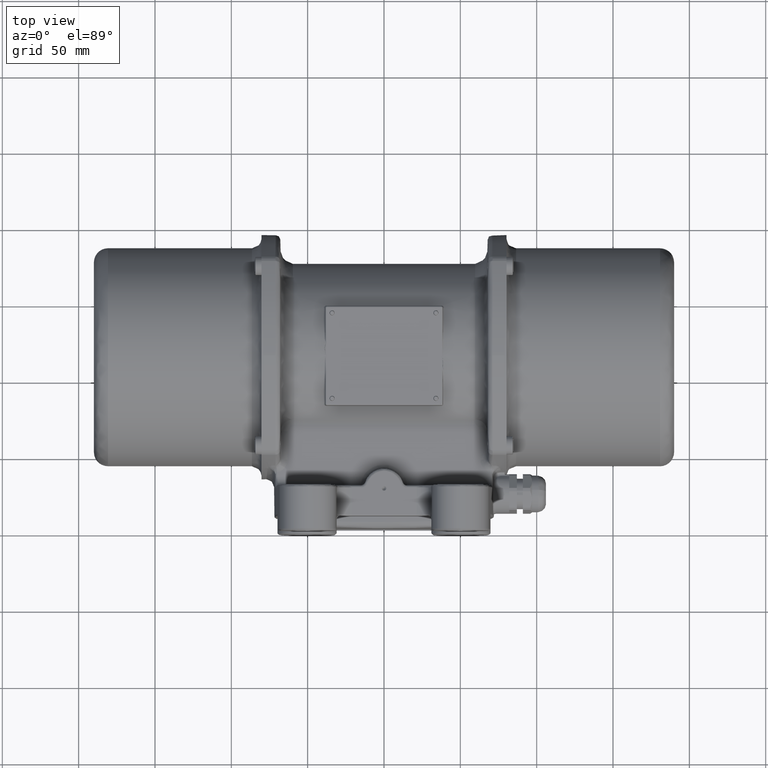
[diagram: clean part render]
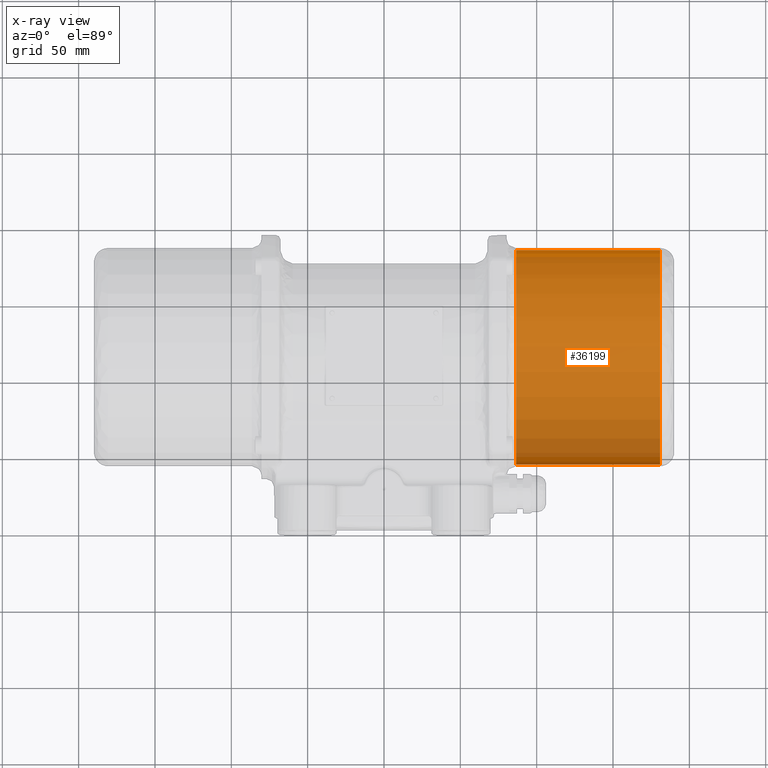
[diagram: x-ray — body ghosted, one internal face saturated and labeled with its STEP entity id]
A machine part, top view, then the same camera in x-ray: the body is ghosted and one INTERNAL B-rep face — a face not visible from any outside direction — is saturated and labeled: STEP entity #36199.
In plain terms, the highlighted cylindrical surface (partial cylindrical patch) has radius 70.2 mm, axis along (1, 0, 0).
Its self-contained STEP definition (entity closure, byte-faithful):
#1112 = DIRECTION ( 'NONE',  ( -1.024030496360180900E-013, 1.000000000000000000, 5.551115123126217800E-017 ) ) ;
#1892 = ORIENTED_EDGE ( 'NONE', *, *, #124322, .F. ) ;
#2764 = LINE ( 'NONE', #129649, #111821 ) ;
#3417 = DIRECTION ( 'NONE',  ( 1.000000000000000000, 1.022580077287964000E-013, 5.620270106085739700E-017 ) ) ;
#7946 = CARTESIAN_POINT ( 'NONE',  ( 86.49999999999522500, 185.1999999999923100, -8.173075674276640300E-012 ) ) ;
#8882 = EDGE_LOOP ( 'NONE', ( #36112, #57761, #85503, #1892 ) ) ;
#22369 = CARTESIAN_POINT ( 'NONE',  ( 86.50000000000956400, 44.80000000000368500, -8.172272419379493600E-012 ) ) ;
#22701 = LINE ( 'NONE', #70861, #61519 ) ;
#26616 = CYLINDRICAL_SURFACE ( 'NONE', #35177, 70.19999999999430400 ) ;
#27861 = DIRECTION ( 'NONE',  ( 1.000000000000000000, 1.022580077287964000E-013, 5.620270106085739700E-017 ) ) ;
#28782 = DIRECTION ( 'NONE',  ( -1.000000000000000000, -1.022580077287964000E-013, -5.620270106085739700E-017 ) ) ;
#35177 = AXIS2_PLACEMENT_3D ( 'NONE', #49626, #105700, #143093 ) ;
#36112 = ORIENTED_EDGE ( 'NONE', *, *, #125571, .F. ) ;
#36199 = ADVANCED_FACE ( 'NONE', ( #142814 ), #26616, .F. ) ;
#38885 = VERTEX_POINT ( 'NONE', #48931 ) ;
#43124 = EDGE_CURVE ( 'NONE', #44981, #38885, #2764, .T. ) ;
#44981 = VERTEX_POINT ( 'NONE', #22369 ) ;
#47378 = CARTESIAN_POINT ( 'NONE',  ( 180.7999999999997800, 185.2000000000019200, -8.173075674276640300E-012 ) ) ;
#48931 = CARTESIAN_POINT ( 'NONE',  ( 180.8000000000141700, 44.80000000001329900, -8.169622462024475200E-012 ) ) ;
#49626 = CARTESIAN_POINT ( 'NONE',  ( 190.0000000000104900, 115.0000000000086100, -8.165208514358281100E-012 ) ) ;
#56291 = VERTEX_POINT ( 'NONE', #47378 ) ;
#57761 = ORIENTED_EDGE ( 'NONE', *, *, #76287, .F. ) ;
#61519 = VECTOR ( 'NONE', #3417, 1000.000000000000000 ) ;
#67620 = DIRECTION ( 'NONE',  ( 1.000000000000000000, 1.022580077287964000E-013, 5.620270106085739700E-017 ) ) ;
#70861 = CARTESIAN_POINT ( 'NONE',  ( 190.0000000000033000, 185.2000000000029200, -8.169908652071861200E-012 ) ) ;
#76287 = EDGE_CURVE ( 'NONE', #44981, #141944, #95500, .T. ) ;
#76975 = DIRECTION ( 'NONE',  ( 1.024030496360181200E-013, -1.000000000000000000, -5.551115123126219000E-017 ) ) ;
#85503 = ORIENTED_EDGE ( 'NONE', *, *, #43124, .T. ) ;
#93451 = CIRCLE ( 'NONE', #117282, 70.19999999999430400 ) ;
#95500 = CIRCLE ( 'NONE', #104626, 70.19999999999431900 ) ;
#104626 = AXIS2_PLACEMENT_3D ( 'NONE', #111421, #67620, #1112 ) ;
#105700 = DIRECTION ( 'NONE',  ( 1.000000000000000000, 1.022580077287964000E-013, 5.620270106085739700E-017 ) ) ;
#111421 = CARTESIAN_POINT ( 'NONE',  ( 86.50000000000238700, 114.9999999999980000, -8.171025493918080200E-012 ) ) ;
#111821 = VECTOR ( 'NONE', #27861, 1000.000000000000000 ) ;
#117282 = AXIS2_PLACEMENT_3D ( 'NONE', #118819, #28782, #76975 ) ;
#118819 = CARTESIAN_POINT ( 'NONE',  ( 180.8000000000069700, 115.0000000000076200, -8.165725579208041900E-012 ) ) ;
#124322 = EDGE_CURVE ( 'NONE', #56291, #38885, #93451, .T. ) ;
#125571 = EDGE_CURVE ( 'NONE', #141944, #56291, #22701, .T. ) ;
#129649 = CARTESIAN_POINT ( 'NONE',  ( 190.0000000000176800, 44.80000000001430000, -8.169105397174714400E-012 ) ) ;
#141944 = VERTEX_POINT ( 'NONE', #7946 ) ;
#142814 = FACE_OUTER_BOUND ( 'NONE', #8882, .T. ) ;
#143093 = DIRECTION ( 'NONE',  ( 1.024030496360181200E-013, -1.000000000000000000, -5.551115123126219000E-017 ) ) ;